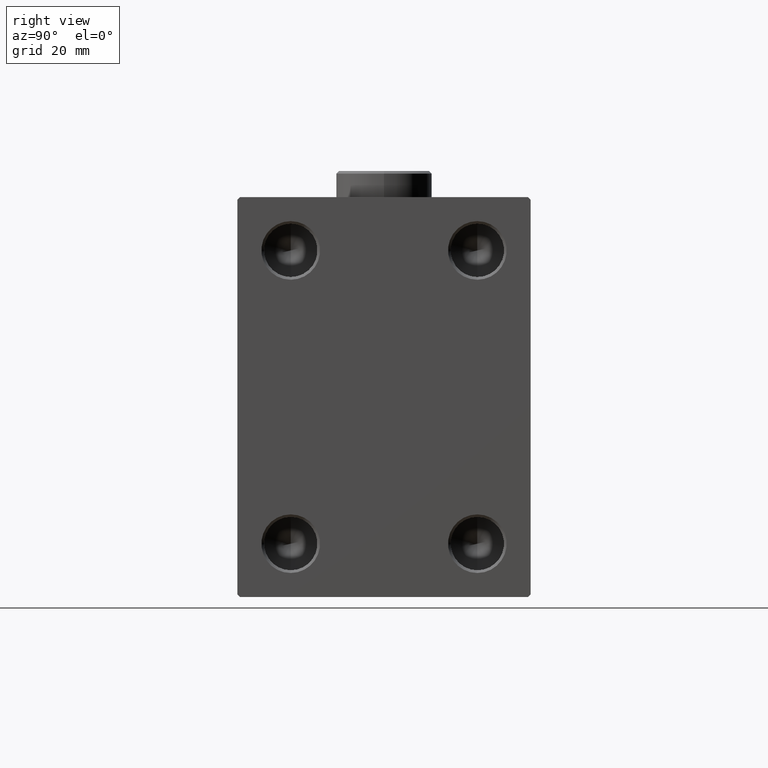
[diagram: clean part render]
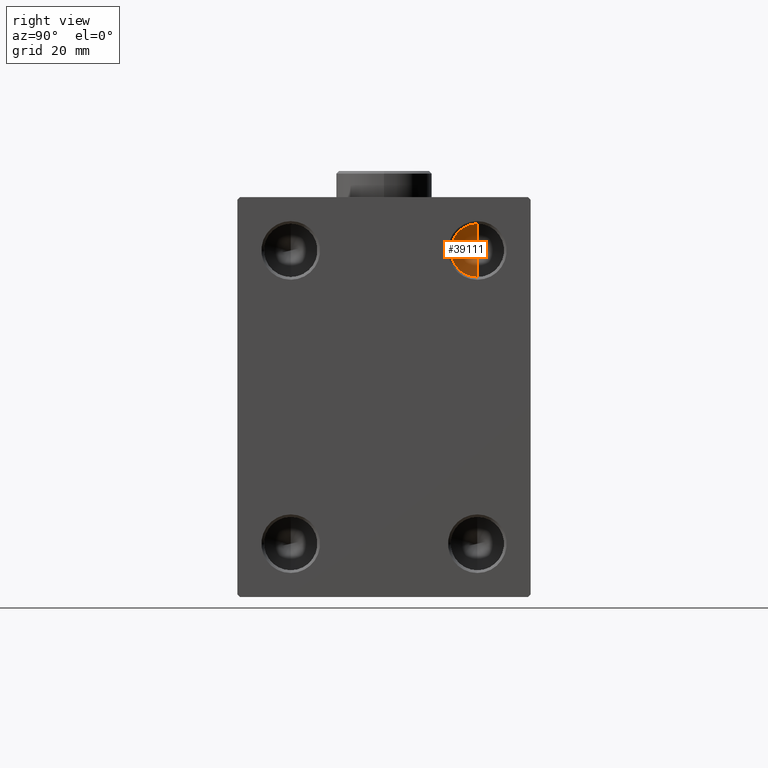
[diagram: same view with one face highlighted and labeled with its STEP entity id]
A machine part, right view. The second image highlights one B-rep face of the part: STEP entity #39111.
In plain terms, the highlighted conical surface has half-angle 59 deg.
Its self-contained STEP definition (entity closure, byte-faithful):
#2092 = CARTESIAN_POINT ( 'NONE',  ( 61.99569690486219997, 17.49999999999999645, 27.50000000000000000 ) ) ;
#5357 = LINE ( 'NONE', #19856, #15746 ) ;
#5881 = CARTESIAN_POINT ( 'NONE',  ( 65.00000000000000000, 17.50000000000000000, 32.50000000000000000 ) ) ;
#6107 = EDGE_CURVE ( 'NONE', #32222, #21362, #20619, .T. ) ;
#9674 = VERTEX_POINT ( 'NONE', #13495 ) ;
#10145 = CIRCLE ( 'NONE', #42541, 5.000000000000000888 ) ;
#11358 = CARTESIAN_POINT ( 'NONE',  ( 65.00000000000000000, 17.50000000000000000, 27.50000000000000000 ) ) ;
#13495 = CARTESIAN_POINT ( 'NONE',  ( 65.00000000000000000, 17.50000000000000000, 22.50000000000000355 ) ) ;
#13635 = CARTESIAN_POINT ( 'NONE',  ( 65.00000000000000000, 17.50000000000000000, 27.50000000000000000 ) ) ;
#13703 = DIRECTION ( 'NONE',  ( 0.5150380749100550437, 0.000000000000000000, 0.8571673007021117785 ) ) ;
#15746 = VECTOR ( 'NONE', #15948, 1000.000000000000000 ) ;
#15948 = DIRECTION ( 'NONE',  ( 0.5150380749100550437, -1.049727191138617956E-16, -0.8571673007021117785 ) ) ;
#17565 = VECTOR ( 'NONE', #13703, 1000.000000000000000 ) ;
#18394 = EDGE_LOOP ( 'NONE', ( #29985, #21689, #28973 ) ) ;
#18720 = DIRECTION ( 'NONE',  ( 0.000000000000000000, 0.000000000000000000, 1.000000000000000000 ) ) ;
#19752 = CONICAL_SURFACE ( 'NONE', #36671, 5.000000000000000888, 1.029744258676653423 ) ;
#19856 = CARTESIAN_POINT ( 'NONE',  ( 65.00000000000000000, 17.50000000000000000, 22.50000000000000355 ) ) ;
#20619 = LINE ( 'NONE', #5881, #17565 ) ;
#21362 = VERTEX_POINT ( 'NONE', #32039 ) ;
#21689 = ORIENTED_EDGE ( 'NONE', *, *, #6107, .T. ) ;
#24713 = DIRECTION ( 'NONE',  ( 0.000000000000000000, 0.000000000000000000, 1.000000000000000000 ) ) ;
#25214 = EDGE_CURVE ( 'NONE', #32222, #9674, #5357, .T. ) ;
#25649 = DIRECTION ( 'NONE',  ( -1.000000000000000000, 0.000000000000000000, 0.000000000000000000 ) ) ;
#28973 = ORIENTED_EDGE ( 'NONE', *, *, #37562, .F. ) ;
#29985 = ORIENTED_EDGE ( 'NONE', *, *, #25214, .F. ) ;
#31154 = FACE_OUTER_BOUND ( 'NONE', #18394, .T. ) ;
#32039 = CARTESIAN_POINT ( 'NONE',  ( 65.00000000000000000, 17.50000000000000000, 32.50000000000000000 ) ) ;
#32222 = VERTEX_POINT ( 'NONE', #2092 ) ;
#36671 = AXIS2_PLACEMENT_3D ( 'NONE', #13635, #41986, #24713 ) ;
#37562 = EDGE_CURVE ( 'NONE', #9674, #21362, #10145, .T. ) ;
#39111 = ADVANCED_FACE ( 'NONE', ( #31154 ), #19752, .F. ) ;
#41986 = DIRECTION ( 'NONE',  ( 1.000000000000000000, -0.000000000000000000, -0.000000000000000000 ) ) ;
#42541 = AXIS2_PLACEMENT_3D ( 'NONE', #11358, #25649, #18720 ) ;